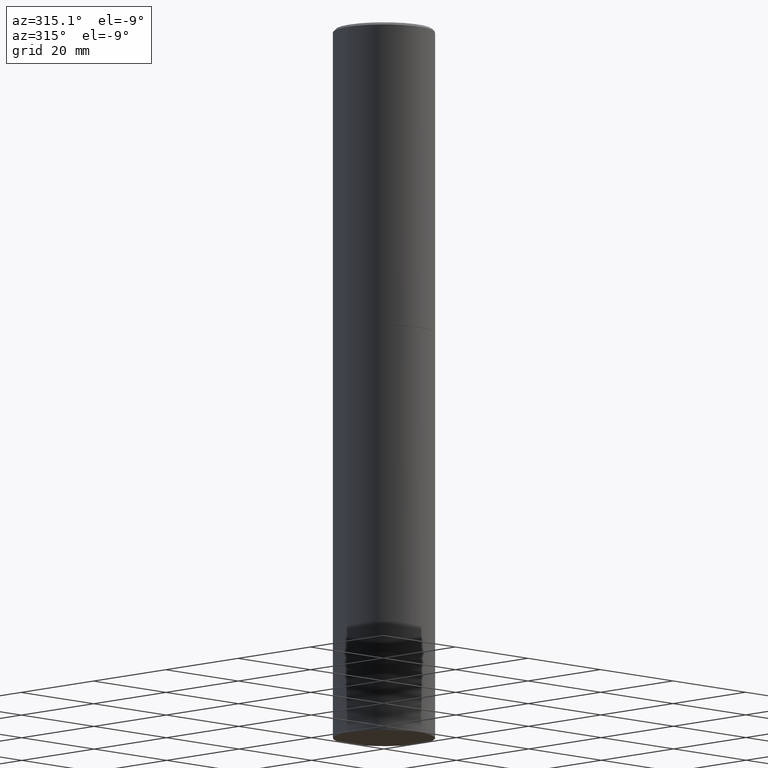
[diagram: clean part render]
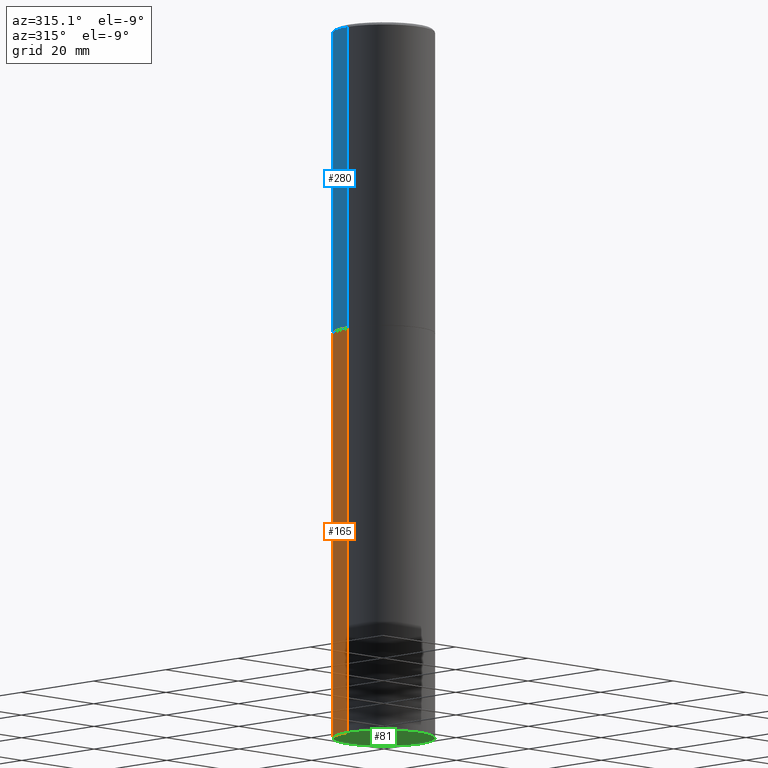
[diagram: same view with three faces highlighted in distinct colors, each labeled with its STEP entity id]
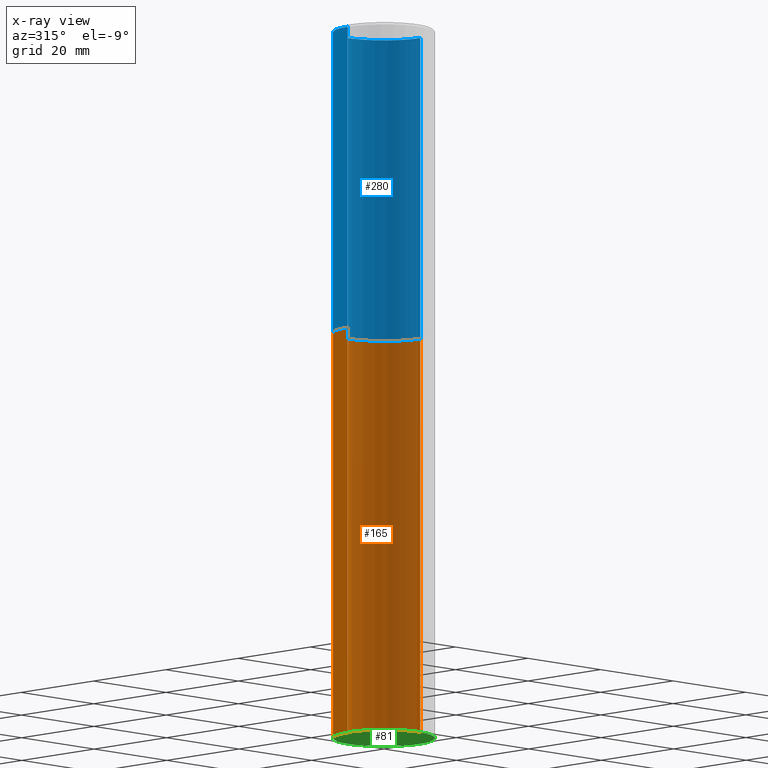
[diagram: x-ray of the same camera — body ghosted, the three highlighted faces saturated]
A machine part, auxiliary view with three faces highlighted in distinct colors.
The next image is the same camera in x-ray (body ghosted, the three faces saturated) — at least one of them is partly hidden behind the body in this view.
Their STEP definitions:

[orange] entity #165 — the highlighted cylindrical surface (partial cylindrical patch) has radius 10 mm, axis along (-0, 0, 1).
#1 = LINE ( 'NONE', #91, #218 ) ;
#7 = AXIS2_PLACEMENT_3D ( 'NONE', #143, #252, #361 ) ;
#23 = CIRCLE ( 'NONE', #7, 0.3937000000000000499 ) ;
#27 = VERTEX_POINT ( 'NONE', #207 ) ;
#42 = EDGE_CURVE ( 'NONE', #307, #27, #206, .T. ) ;
#47 = CARTESIAN_POINT ( 'NONE',  ( 5.776686413970529753E-29, -8.247577218615279626E-15, -2.362200000000000077 ) ) ;
#61 = DIRECTION ( 'NONE',  ( -2.445468806185136877E-29, 3.491481338843145188E-15, 1.000000000000000000 ) ) ;
#76 = EDGE_CURVE ( 'NONE', #307, #145, #23, .T. ) ;
#91 = CARTESIAN_POINT ( 'NONE',  ( -0.3937000000000000499, 2.797406750687514786E-15, -1.936584745033356735E-29 ) ) ;
#95 = CARTESIAN_POINT ( 'NONE',  ( 0.000000000000000000, 0.000000000000000000, 0.000000000000000000 ) ) ;
#100 = DIRECTION ( 'NONE',  ( 1.000000000000000000, -6.982962677686267499E-15, 0.000000000000000000 ) ) ;
#125 = DIRECTION ( 'NONE',  ( -2.445468806185136597E-29, 3.491481338843145583E-15, 1.000000000000000000 ) ) ;
#129 = ORIENTED_EDGE ( 'NONE', *, *, #76, .T. ) ;
#136 = DIRECTION ( 'NONE',  ( -2.445468806185136597E-29, 3.491481338843145583E-15, 1.000000000000000000 ) ) ;
#143 = CARTESIAN_POINT ( 'NONE',  ( 1.347893496593123646E-28, -1.924434684343564878E-14, -5.511800000000000033 ) ) ;
#144 = VECTOR ( 'NONE', #146, 39.37007874015748143 ) ;
#145 = VERTEX_POINT ( 'NONE', #209 ) ;
#146 = DIRECTION ( 'NONE',  ( -2.445468806185136877E-29, 3.491481338843145188E-15, 1.000000000000000000 ) ) ;
#161 = CYLINDRICAL_SURFACE ( 'NONE', #351, 0.3937000000000000499 ) ;
#165 = ADVANCED_FACE ( 'NONE', ( #318 ), #161, .T. ) ;
#166 = ORIENTED_EDGE ( 'NONE', *, *, #198, .T. ) ;
#198 = EDGE_CURVE ( 'NONE', #145, #256, #1, .T. ) ;
#202 = ORIENTED_EDGE ( 'NONE', *, *, #301, .F. ) ;
#206 = LINE ( 'NONE', #309, #144 ) ;
#207 = CARTESIAN_POINT ( 'NONE',  ( 0.3937000000000000499, -1.099676962482036284E-14, -2.362200000000000077 ) ) ;
#209 = CARTESIAN_POINT ( 'NONE',  ( -0.3937000000000000499, -1.094855528033794942E-14, -5.511800000000000033 ) ) ;
#218 = VECTOR ( 'NONE', #61, 39.37007874015748143 ) ;
#220 = DIRECTION ( 'NONE',  ( 1.000000000000000000, -6.982962677686265922E-15, 4.876176775795935793E-29 ) ) ;
#229 = CIRCLE ( 'NONE', #243, 0.3937000000000000499 ) ;
#243 = AXIS2_PLACEMENT_3D ( 'NONE', #47, #136, #100 ) ;
#252 = DIRECTION ( 'NONE',  ( -2.445468806185136597E-29, 3.491481338843145583E-15, 1.000000000000000000 ) ) ;
#256 = VERTEX_POINT ( 'NONE', #277 ) ;
#277 = CARTESIAN_POINT ( 'NONE',  ( -0.3937000000000000499, -1.094855528033794942E-14, -2.362200000000000077 ) ) ;
#279 = EDGE_LOOP ( 'NONE', ( #129, #166, #202, #281 ) ) ;
#281 = ORIENTED_EDGE ( 'NONE', *, *, #42, .F. ) ;
#297 = CARTESIAN_POINT ( 'NONE',  ( 0.3937000000000000499, -2.199353924964073200E-14, -5.511800000000000033 ) ) ;
#301 = EDGE_CURVE ( 'NONE', #27, #256, #229, .T. ) ;
#307 = VERTEX_POINT ( 'NONE', #297 ) ;
#309 = CARTESIAN_POINT ( 'NONE',  ( 0.3937000000000000499, -2.749192406205083217E-15, 1.919750796630860172E-29 ) ) ;
#318 = FACE_OUTER_BOUND ( 'NONE', #279, .T. ) ;
#351 = AXIS2_PLACEMENT_3D ( 'NONE', #95, #125, #220 ) ;
#361 = DIRECTION ( 'NONE',  ( 1.000000000000000000, -6.982962677686267499E-15, 0.000000000000000000 ) ) ;

[blue] entity #280 — the highlighted cylindrical surface (partial cylindrical patch) has radius 10 mm, axis along (-0, 0, 1).
#8 = DIRECTION ( 'NONE',  ( -2.445468806185136597E-29, 3.491481338843145583E-15, 1.000000000000000000 ) ) ;
#16 = LINE ( 'NONE', #194, #40 ) ;
#19 = DIRECTION ( 'NONE',  ( -2.445468806185136597E-29, 3.491481338843145583E-15, 1.000000000000000000 ) ) ;
#40 = VECTOR ( 'NONE', #141, 39.37007874015748143 ) ;
#45 = VERTEX_POINT ( 'NONE', #365 ) ;
#64 = VERTEX_POINT ( 'NONE', #116 ) ;
#68 = ORIENTED_EDGE ( 'NONE', *, *, #291, .T. ) ;
#77 = CIRCLE ( 'NONE', #188, 0.3937000000000001054 ) ;
#107 = DIRECTION ( 'NONE',  ( -2.445468806185136597E-29, 3.491481338843145583E-15, 1.000000000000000000 ) ) ;
#116 = CARTESIAN_POINT ( 'NONE',  ( 0.3937000000000001054, -1.099327814348151826E-14, -2.361199999999999743 ) ) ;
#121 = AXIS2_PLACEMENT_3D ( 'NONE', #302, #107, #330 ) ;
#138 = LINE ( 'NONE', #352, #251 ) ;
#139 = CARTESIAN_POINT ( 'NONE',  ( -0.3937000000000001609, -1.359550931339131820E-15, -2.361199999999999743 ) ) ;
#141 = DIRECTION ( 'NONE',  ( -2.445468806185136877E-29, 3.491481338843145188E-15, 1.000000000000000000 ) ) ;
#167 = CARTESIAN_POINT ( 'NONE',  ( -0.3936999999999998279, 2.679362779428218735E-15, -0.02000000000000008715 ) ) ;
#173 = CARTESIAN_POINT ( 'NONE',  ( 4.890937612370294178E-31, -6.982962677686321191E-17, -0.02000000000000008715 ) ) ;
#180 = VERTEX_POINT ( 'NONE', #167 ) ;
#188 = AXIS2_PLACEMENT_3D ( 'NONE', #215, #8, #244 ) ;
#193 = ORIENTED_EDGE ( 'NONE', *, *, #222, .T. ) ;
#194 = CARTESIAN_POINT ( 'NONE',  ( 0.3936999999999999389, -2.749192406205082822E-15, 1.919750796630859611E-29 ) ) ;
#213 = AXIS2_PLACEMENT_3D ( 'NONE', #173, #19, #364 ) ;
#215 = CARTESIAN_POINT ( 'NONE',  ( 5.774240945164344150E-29, -8.244085737276435042E-15, -2.361199999999999743 ) ) ;
#221 = CYLINDRICAL_SURFACE ( 'NONE', #121, 0.3936999999999999389 ) ;
#222 = EDGE_CURVE ( 'NONE', #64, #262, #77, .T. ) ;
#244 = DIRECTION ( 'NONE',  ( 1.000000000000000000, -6.982962677686263555E-15, 0.000000000000000000 ) ) ;
#245 = EDGE_LOOP ( 'NONE', ( #193, #68, #326, #284 ) ) ;
#250 = DIRECTION ( 'NONE',  ( -2.445468806185136877E-29, 3.491481338843145188E-15, 1.000000000000000000 ) ) ;
#251 = VECTOR ( 'NONE', #250, 39.37007874015748143 ) ;
#262 = VERTEX_POINT ( 'NONE', #139 ) ;
#276 = FACE_OUTER_BOUND ( 'NONE', #245, .T. ) ;
#278 = EDGE_CURVE ( 'NONE', #64, #45, #16, .T. ) ;
#280 = ADVANCED_FACE ( 'NONE', ( #276 ), #221, .T. ) ;
#284 = ORIENTED_EDGE ( 'NONE', *, *, #278, .F. ) ;
#291 = EDGE_CURVE ( 'NONE', #262, #180, #138, .T. ) ;
#302 = CARTESIAN_POINT ( 'NONE',  ( 0.000000000000000000, 0.000000000000000000, 0.000000000000000000 ) ) ;
#320 = CIRCLE ( 'NONE', #213, 0.3936999999999998279 ) ;
#326 = ORIENTED_EDGE ( 'NONE', *, *, #338, .F. ) ;
#330 = DIRECTION ( 'NONE',  ( 1.000000000000000000, -6.982962677686266711E-15, 4.876176775795935793E-29 ) ) ;
#338 = EDGE_CURVE ( 'NONE', #45, #180, #320, .T. ) ;
#352 = CARTESIAN_POINT ( 'NONE',  ( -0.3936999999999999389, 2.797406750687513998E-15, -1.936584745033356455E-29 ) ) ;
#364 = DIRECTION ( 'NONE',  ( 1.000000000000000000, -6.982962677686266711E-15, 0.000000000000000000 ) ) ;
#365 = CARTESIAN_POINT ( 'NONE',  ( 0.3936999999999998279, -2.770807688499514156E-15, -0.02000000000000008715 ) ) ;

[green] entity #81 — the highlighted planar face has unit normal (0, -0, -1).
#7 = AXIS2_PLACEMENT_3D ( 'NONE', #143, #252, #361 ) ;
#23 = CIRCLE ( 'NONE', #7, 0.3937000000000000499 ) ;
#36 = EDGE_CURVE ( 'NONE', #145, #307, #176, .T. ) ;
#38 = ORIENTED_EDGE ( 'NONE', *, *, #36, .F. ) ;
#60 = FACE_OUTER_BOUND ( 'NONE', #168, .T. ) ;
#67 = PLANE ( 'NONE',  #75 ) ;
#75 = AXIS2_PLACEMENT_3D ( 'NONE', #294, #164, #264 ) ;
#76 = EDGE_CURVE ( 'NONE', #307, #145, #23, .T. ) ;
#81 = ADVANCED_FACE ( 'NONE', ( #60 ), #67, .T. ) ;
#104 = AXIS2_PLACEMENT_3D ( 'NONE', #227, #181, #333 ) ;
#143 = CARTESIAN_POINT ( 'NONE',  ( 1.347893496593123646E-28, -1.924434684343564878E-14, -5.511800000000000033 ) ) ;
#145 = VERTEX_POINT ( 'NONE', #209 ) ;
#164 = DIRECTION ( 'NONE',  ( 2.438088387897960049E-29, -3.491481338843145188E-15, -1.000000000000000000 ) ) ;
#168 = EDGE_LOOP ( 'NONE', ( #175, #38 ) ) ;
#175 = ORIENTED_EDGE ( 'NONE', *, *, #76, .F. ) ;
#176 = CIRCLE ( 'NONE', #104, 0.3937000000000000499 ) ;
#181 = DIRECTION ( 'NONE',  ( -2.445468806185136597E-29, 3.491481338843145583E-15, 1.000000000000000000 ) ) ;
#209 = CARTESIAN_POINT ( 'NONE',  ( -0.3937000000000000499, -1.094855528033794942E-14, -5.511800000000000033 ) ) ;
#227 = CARTESIAN_POINT ( 'NONE',  ( 1.347893496593123646E-28, -1.924434684343564878E-14, -5.511800000000000033 ) ) ;
#252 = DIRECTION ( 'NONE',  ( -2.445468806185136597E-29, 3.491481338843145583E-15, 1.000000000000000000 ) ) ;
#264 = DIRECTION ( 'NONE',  ( -1.000000000000000000, 6.982962677686265922E-15, -4.876176775795935793E-29 ) ) ;
#294 = CARTESIAN_POINT ( 'NONE',  ( 2.749192406205217717E-15, 0.3936999999999807875, -5.511800000000000921 ) ) ;
#297 = CARTESIAN_POINT ( 'NONE',  ( 0.3937000000000000499, -2.199353924964073200E-14, -5.511800000000000033 ) ) ;
#307 = VERTEX_POINT ( 'NONE', #297 ) ;
#333 = DIRECTION ( 'NONE',  ( 1.000000000000000000, -6.982962677686267499E-15, 0.000000000000000000 ) ) ;
#361 = DIRECTION ( 'NONE',  ( 1.000000000000000000, -6.982962677686267499E-15, 0.000000000000000000 ) ) ;